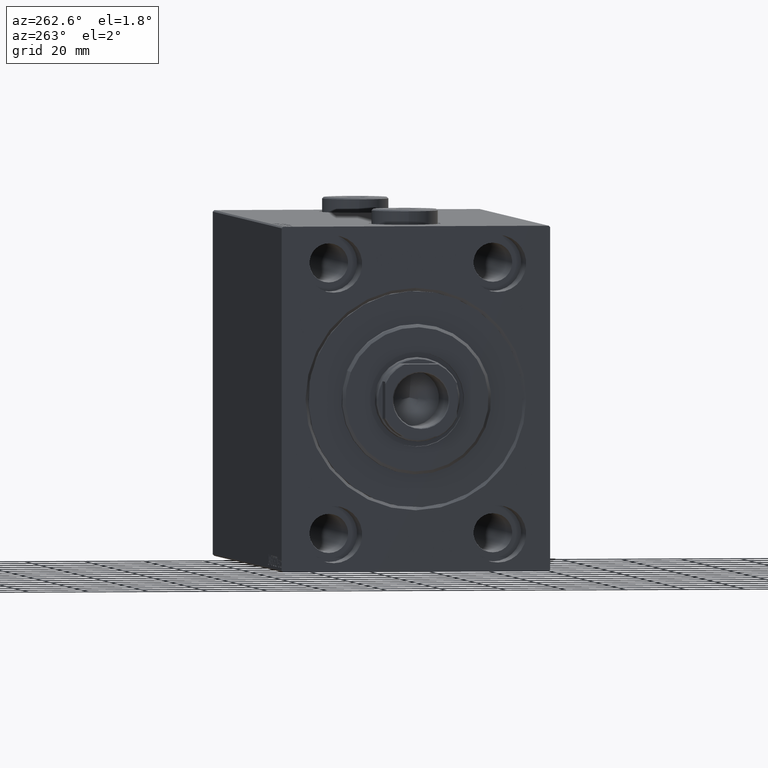
[diagram: clean part render]
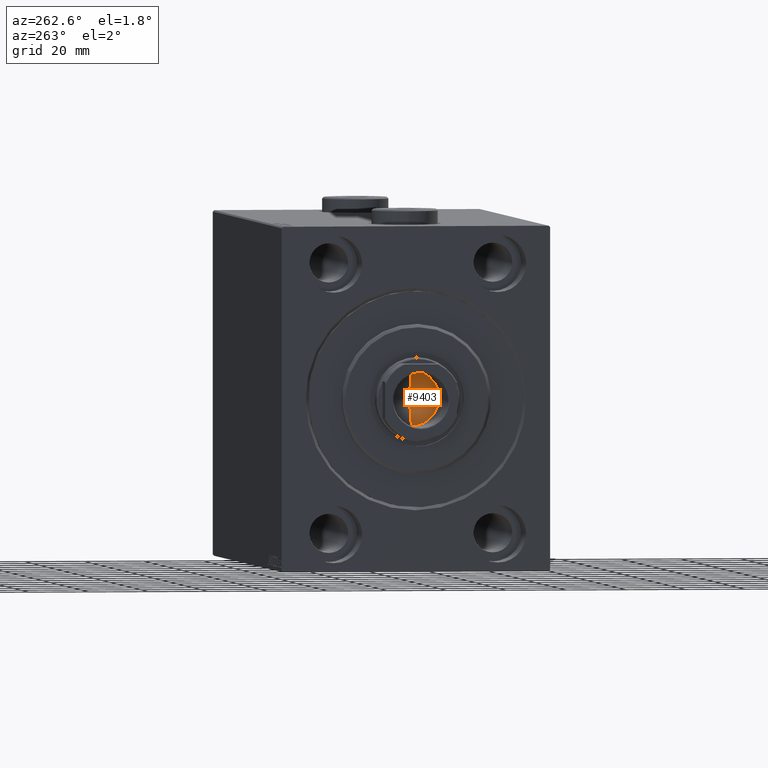
[diagram: same view with one face highlighted and labeled with its STEP entity id]
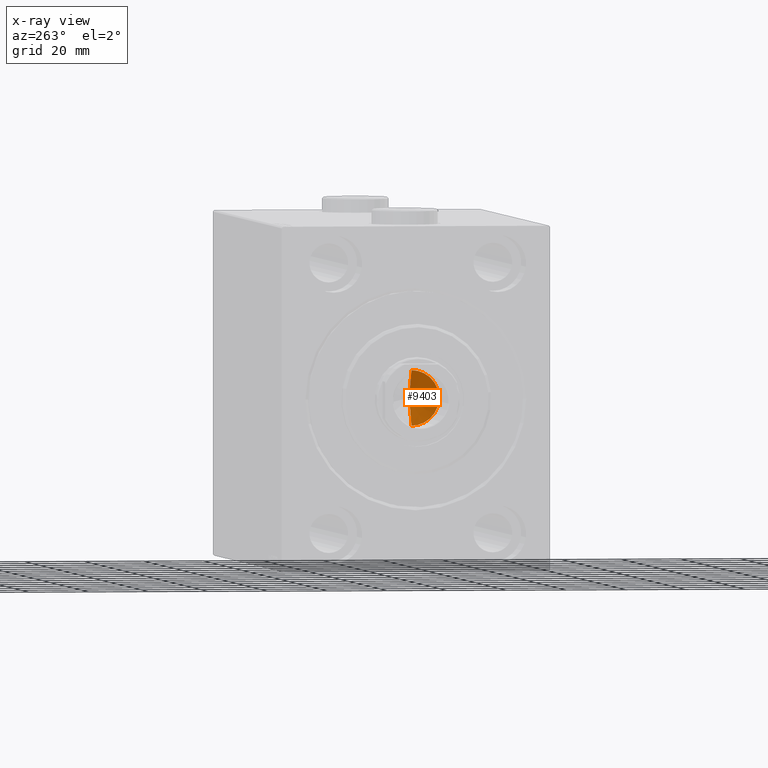
[diagram: x-ray of the same camera — body ghosted, the highlighted face saturated]
A machine part, auxiliary view. The second image highlights one B-rep face of the part: STEP entity #9403.
The next image is the same camera in x-ray: the body ghosted, the highlighted face saturated — about 0% of this face is hidden behind the body in this view.
In plain terms, the highlighted conical surface has half-angle 59 deg.
Its self-contained STEP definition (entity closure, byte-faithful):
#3039 = EDGE_LOOP ( 'NONE', ( #4587, #7225, #15772 ) ) ;
#3816 = FACE_OUTER_BOUND ( 'NONE', #3039, .T. ) ;
#4472 = VECTOR ( 'NONE', #32560, 1000.000000000000000 ) ;
#4587 = ORIENTED_EDGE ( 'NONE', *, *, #36609, .F. ) ;
#7225 = ORIENTED_EDGE ( 'NONE', *, *, #36114, .T. ) ;
#7371 = VECTOR ( 'NONE', #28313, 1000.000000000000000 ) ;
#9403 = ADVANCED_FACE ( 'NONE', ( #3816 ), #24724, .F. ) ;
#9576 = CARTESIAN_POINT ( 'NONE',  ( -9.249999999999994671, 1.132798289211300909E-15, 149.0000000000000000 ) ) ;
#10457 = DIRECTION ( 'NONE',  ( -0.000000000000000000, -0.000000000000000000, 1.000000000000000000 ) ) ;
#14122 = CARTESIAN_POINT ( 'NONE',  ( 0.000000000000000000, 0.000000000000000000, 149.0000000000000000 ) ) ;
#14552 = VERTEX_POINT ( 'NONE', #19010 ) ;
#15340 = LINE ( 'NONE', #40328, #4472 ) ;
#15772 = ORIENTED_EDGE ( 'NONE', *, *, #44641, .T. ) ;
#17967 = DIRECTION ( 'NONE',  ( -0.000000000000000000, -0.000000000000000000, 1.000000000000000000 ) ) ;
#18243 = VERTEX_POINT ( 'NONE', #9576 ) ;
#19010 = CARTESIAN_POINT ( 'NONE',  ( 9.249999999999994671, 0.000000000000000000, 149.0000000000000000 ) ) ;
#21418 = CARTESIAN_POINT ( 'NONE',  ( -9.249999999999994671, 1.132798289211300909E-15, 149.0000000000000000 ) ) ;
#24183 = DIRECTION ( 'NONE',  ( 1.000000000000000000, 0.000000000000000000, 0.000000000000000000 ) ) ;
#24185 = LINE ( 'NONE', #21418, #7371 ) ;
#24724 = CONICAL_SURFACE ( 'NONE', #45192, 9.249999999999994671, 1.029744258676652535 ) ;
#25137 = DIRECTION ( 'NONE',  ( 1.000000000000000000, 0.000000000000000000, 0.000000000000000000 ) ) ;
#28313 = DIRECTION ( 'NONE',  ( -0.8571673007021113344, 1.049727191138617463E-16, 0.5150380749100558209 ) ) ;
#31079 = CARTESIAN_POINT ( 'NONE',  ( 0.000000000000000000, 0.000000000000000000, 149.0000000000000000 ) ) ;
#32519 = CIRCLE ( 'NONE', #44196, 9.249999999999994671 ) ;
#32560 = DIRECTION ( 'NONE',  ( 0.8571673007021113344, 0.000000000000000000, 0.5150380749100558209 ) ) ;
#33663 = CARTESIAN_POINT ( 'NONE',  ( -6.793016015247754405E-15, 0.000000000000000000, 143.4420392739950501 ) ) ;
#36114 = EDGE_CURVE ( 'NONE', #43583, #18243, #24185, .T. ) ;
#36609 = EDGE_CURVE ( 'NONE', #43583, #14552, #15340, .T. ) ;
#40328 = CARTESIAN_POINT ( 'NONE',  ( 9.249999999999994671, 0.000000000000000000, 149.0000000000000000 ) ) ;
#43583 = VERTEX_POINT ( 'NONE', #33663 ) ;
#44196 = AXIS2_PLACEMENT_3D ( 'NONE', #31079, #17967, #24183 ) ;
#44641 = EDGE_CURVE ( 'NONE', #18243, #14552, #32519, .T. ) ;
#45192 = AXIS2_PLACEMENT_3D ( 'NONE', #14122, #10457, #25137 ) ;